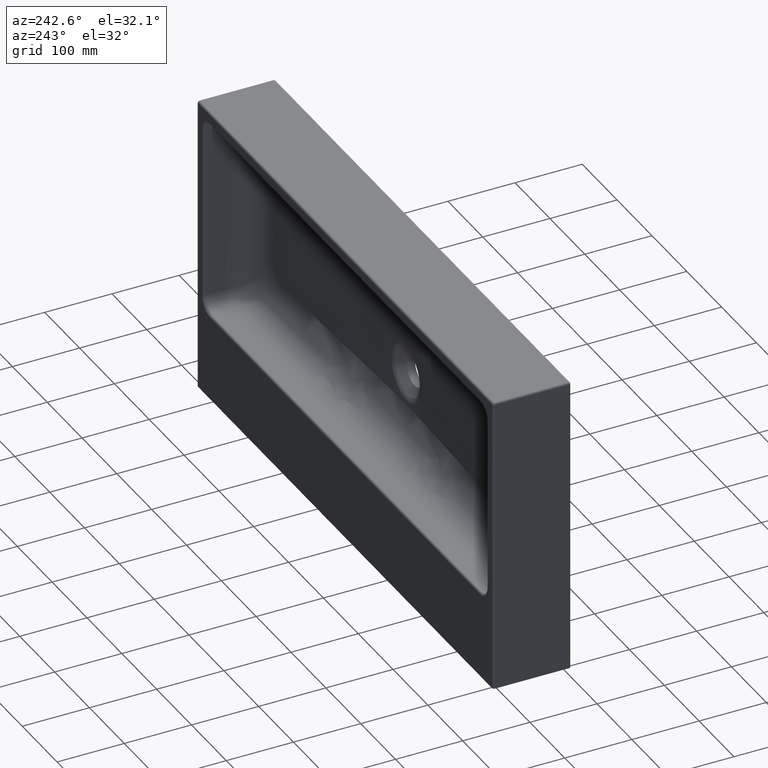
[diagram: clean part render]
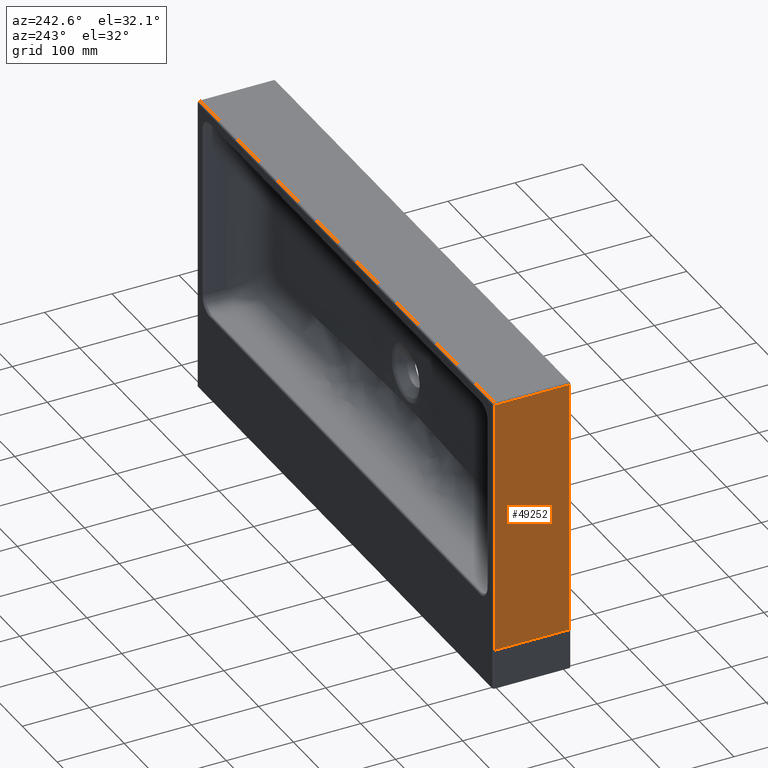
[diagram: same view with one face highlighted and labeled with its STEP entity id]
A machine part, auxiliary view. The second image highlights one B-rep face of the part: STEP entity #49252.
In plain terms, the highlighted face is a freeform B-spline surface patch.
Its self-contained STEP definition (entity closure, byte-faithful):
#24 = LINE ( 'NONE', #79948, #37927 ) ;
#944 = LINE ( 'NONE', #63688, #61479 ) ;
#4673 = CARTESIAN_POINT ( 'NONE',  ( 0.0000000000000000000, 0.0000000000000000000, 10.00000000000000900 ) ) ;
#6843 = CARTESIAN_POINT ( 'NONE',  ( 75.00000000000039800, 3.000000000000002700, 260.0749999999255800 ) ) ;
#7304 = EDGE_CURVE ( 'NONE', #51994, #37414, #24, .T. ) ;
#11233 = ORIENTED_EDGE ( 'NONE', *, *, #16179, .F. ) ;
#12359 = CARTESIAN_POINT ( 'NONE',  ( 24.99999999999996800, 0.0000000000000000000, 10.00000000000000900 ) ) ;
#16179 = EDGE_CURVE ( 'NONE', #51994, #53755, #37059, .T. ) ;
#16988 = VECTOR ( 'NONE', #22386, 1000.000000000000000 ) ;
#18306 = DIRECTION ( 'NONE',  ( 2.198461434901614700E-014, -1.923653755538912700E-014, 1.000000000000000000 ) ) ;
#19957 = CARTESIAN_POINT ( 'NONE',  ( 75.00000000000001400, 0.0000000000000000000, 60.00000000000000000 ) ) ;
#22269 = VERTEX_POINT ( 'NONE', #33578 ) ;
#22386 = DIRECTION ( 'NONE',  ( -4.325544251785330800E-015, 5.271757056863371900E-016, -1.000000000000000000 ) ) ;
#23449 = CARTESIAN_POINT ( 'NONE',  ( 75.00000000000001400, 3.000000000000002700, 59.99999999986199800 ) ) ;
#27484 = CARTESIAN_POINT ( 'NONE',  ( 75.00000000000001400, 0.0000000000000000000, 490.0000000000000000 ) ) ;
#29387 = LINE ( 'NONE', #31357, #69641 ) ;
#31357 = CARTESIAN_POINT ( 'NONE',  ( 75.00000000000000000, 57.99999999999999300, 59.99999986870885500 ) ) ;
#33578 = CARTESIAN_POINT ( 'NONE',  ( 75.00000000000000000, 112.9999999999999300, 59.99999999995920100 ) ) ;
#34768 = CARTESIAN_POINT ( 'NONE',  ( 24.99999999999996800, 115.9999999999999900, 10.00000000000000900 ) ) ;
#37059 = LINE ( 'NONE', #6843, #16988 ) ;
#37414 = VERTEX_POINT ( 'NONE', #66089 ) ;
#37927 = VECTOR ( 'NONE', #71064, 1000.000000000000000 ) ;
#42394 = CARTESIAN_POINT ( 'NONE',  ( 75.00000000000001400, 115.9999999999999900, 60.00000000000000000 ) ) ;
#43035 =( BOUNDED_SURFACE ( )  B_SPLINE_SURFACE ( 1, 2, ( 
 ( #57404, #80057, #34768, #87622, #42394, #95215, #50074 ),
 ( #4673, #57737, #12359, #65290, #19957, #72801, #27484 ) ),
 .UNSPECIFIED., .F., .F., .F. ) 
 B_SPLINE_SURFACE_WITH_KNOTS ( ( 2, 2 ),
 ( 3, 2, 2, 3 ),
 ( 0.0000000000000000000, 116.0000000000000000 ),
 ( -25.00000000000000000, -0.0000000000000000000, 78.53981633974481700, 448.5398163397449600 ),
 .UNSPECIFIED. ) 
 GEOMETRIC_REPRESENTATION_ITEM ( )  RATIONAL_B_SPLINE_SURFACE ( (
 ( 1.000000000000000000, 1.000000000000000000, 1.000000000000000000, 0.7071067811865474600, 1.000000000000000000, 1.000000000000000000, 1.000000000000000000),
 ( 1.000000000000000000, 1.000000000000000000, 1.000000000000000000, 0.7071067811865474600, 1.000000000000000000, 1.000000000000000000, 1.000000000000000000) ) ) 
 REPRESENTATION_ITEM ( '' )  SURFACE ( )  );
#48698 = EDGE_CURVE ( 'NONE', #22269, #37414, #944, .T. ) ;
#49252 = ADVANCED_FACE ( 'NONE', ( #94427 ), #43035, .T. ) ;
#50074 = CARTESIAN_POINT ( 'NONE',  ( 75.00000000000001400, 115.9999999999999900, 490.0000000000000000 ) ) ;
#50238 = EDGE_CURVE ( 'NONE', #22269, #53755, #29387, .T. ) ;
#51994 = VERTEX_POINT ( 'NONE', #53856 ) ;
#52595 = ORIENTED_EDGE ( 'NONE', *, *, #50238, .T. ) ;
#53755 = VERTEX_POINT ( 'NONE', #23449 ) ;
#53856 = CARTESIAN_POINT ( 'NONE',  ( 75.00000000000007100, 3.000000000000002700, 442.0000000000004000 ) ) ;
#57404 = CARTESIAN_POINT ( 'NONE',  ( 0.0000000000000000000, 115.9999999999999900, 10.00000000000000900 ) ) ;
#57737 = CARTESIAN_POINT ( 'NONE',  ( 12.50000000000001100, 0.0000000000000000000, 10.00000000000000900 ) ) ;
#61479 = VECTOR ( 'NONE', #18306, 1000.000000000000000 ) ;
#63688 = CARTESIAN_POINT ( 'NONE',  ( 75.00000000000017100, 112.9999999999999900, 260.0749999999778200 ) ) ;
#65290 = CARTESIAN_POINT ( 'NONE',  ( 75.00000000000001400, 0.0000000000000000000, 9.999999999999966200 ) ) ;
#66089 = CARTESIAN_POINT ( 'NONE',  ( 75.00000000000007100, 112.9999999999999300, 442.0000000000000000 ) ) ;
#68039 = ORIENTED_EDGE ( 'NONE', *, *, #7304, .T. ) ;
#69641 = VECTOR ( 'NONE', #84225, 1000.000000000000000 ) ;
#71064 = DIRECTION ( 'NONE',  ( -0.0000000000000000000, 1.000000000000000000, -0.0000000000000000000 ) ) ;
#71274 = EDGE_LOOP ( 'NONE', ( #52595, #11233, #68039, #83484 ) ) ;
#72801 = CARTESIAN_POINT ( 'NONE',  ( 75.00000000000001400, 0.0000000000000000000, 305.0000000000000000 ) ) ;
#79948 = CARTESIAN_POINT ( 'NONE',  ( 75.00000000000001400, 131.0000000000000600, 442.0000000000000000 ) ) ;
#80057 = CARTESIAN_POINT ( 'NONE',  ( 12.50000000000001100, 115.9999999999999900, 10.00000000000000900 ) ) ;
#83484 = ORIENTED_EDGE ( 'NONE', *, *, #48698, .F. ) ;
#84225 = DIRECTION ( 'NONE',  ( 0.0000000000000000000, -1.000000000000000000, 0.0000000000000000000 ) ) ;
#87622 = CARTESIAN_POINT ( 'NONE',  ( 75.00000000000001400, 115.9999999999999900, 9.999999999999966200 ) ) ;
#94427 = FACE_OUTER_BOUND ( 'NONE', #71274, .T. ) ;
#95215 = CARTESIAN_POINT ( 'NONE',  ( 75.00000000000001400, 115.9999999999999900, 305.0000000000000000 ) ) ;